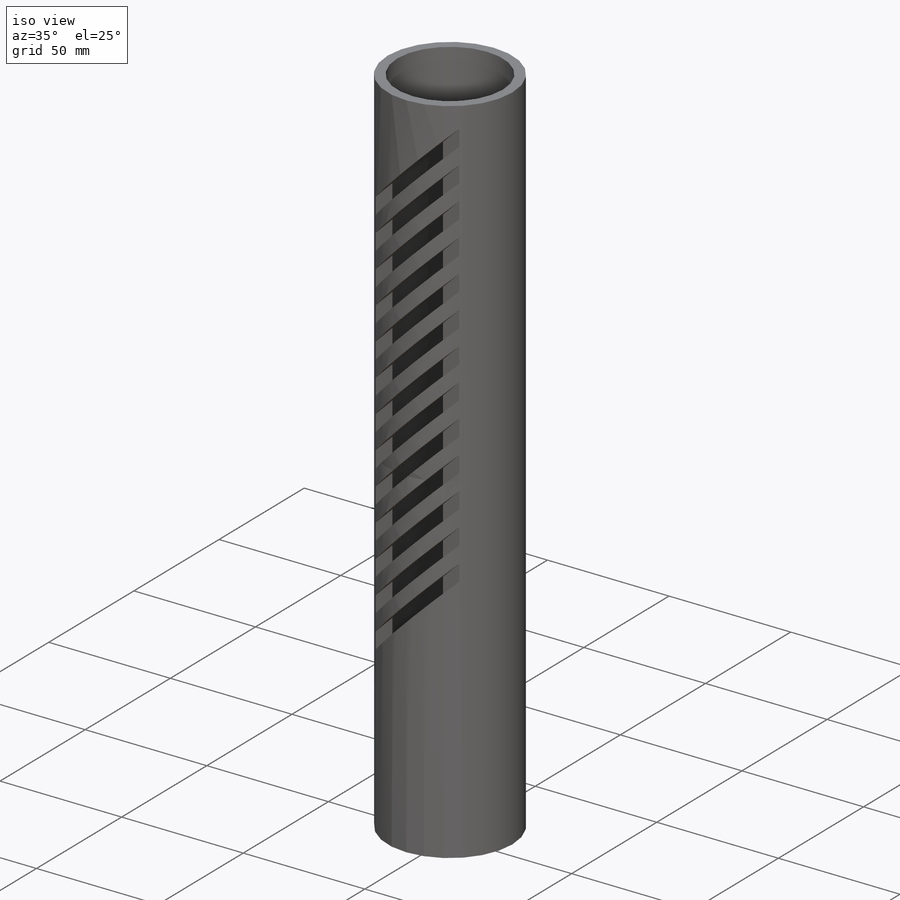
[diagram: iso view]
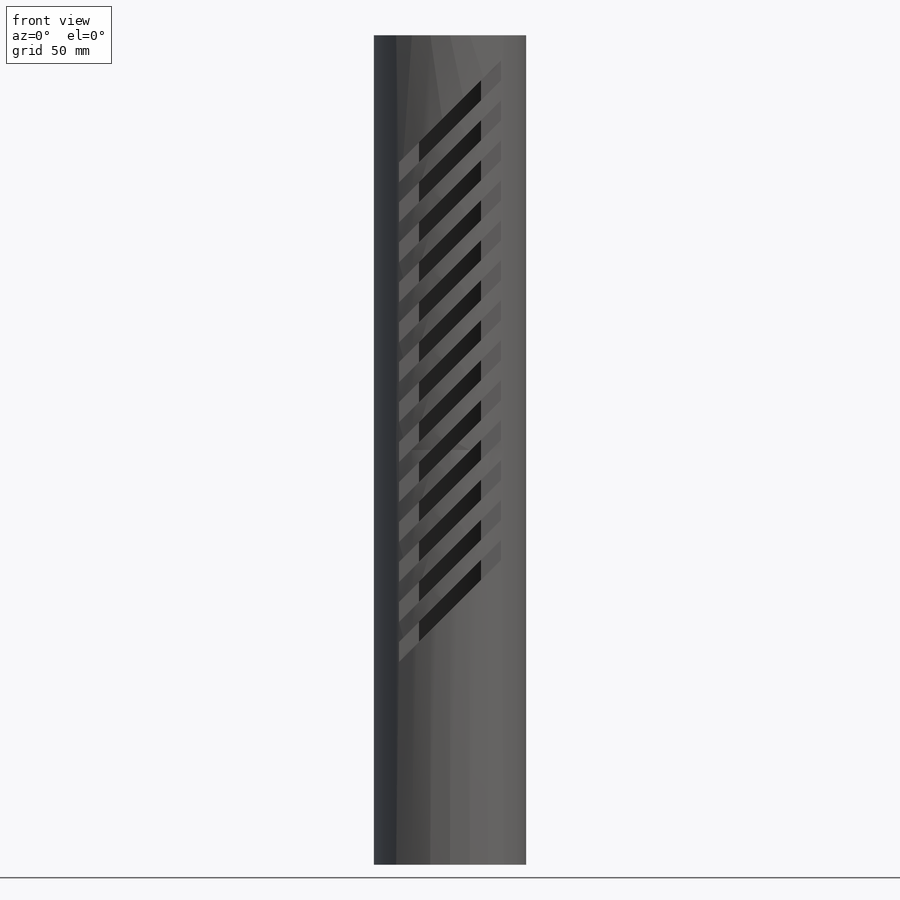
[diagram: front view]
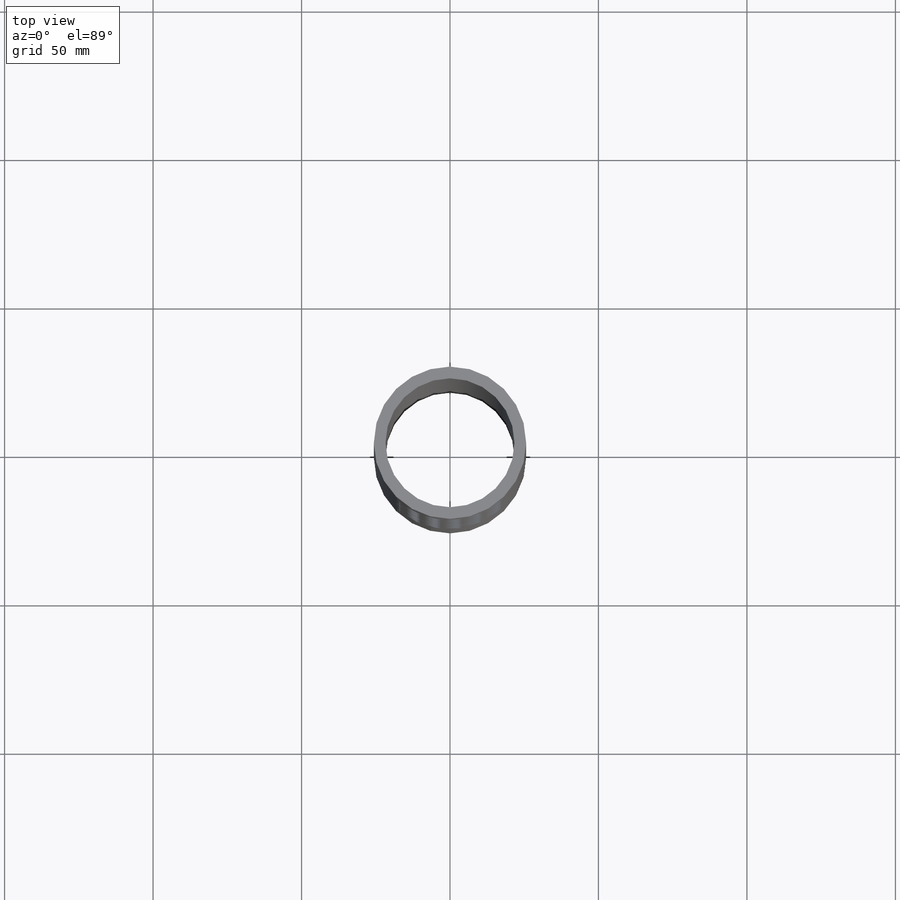
[diagram: top view]
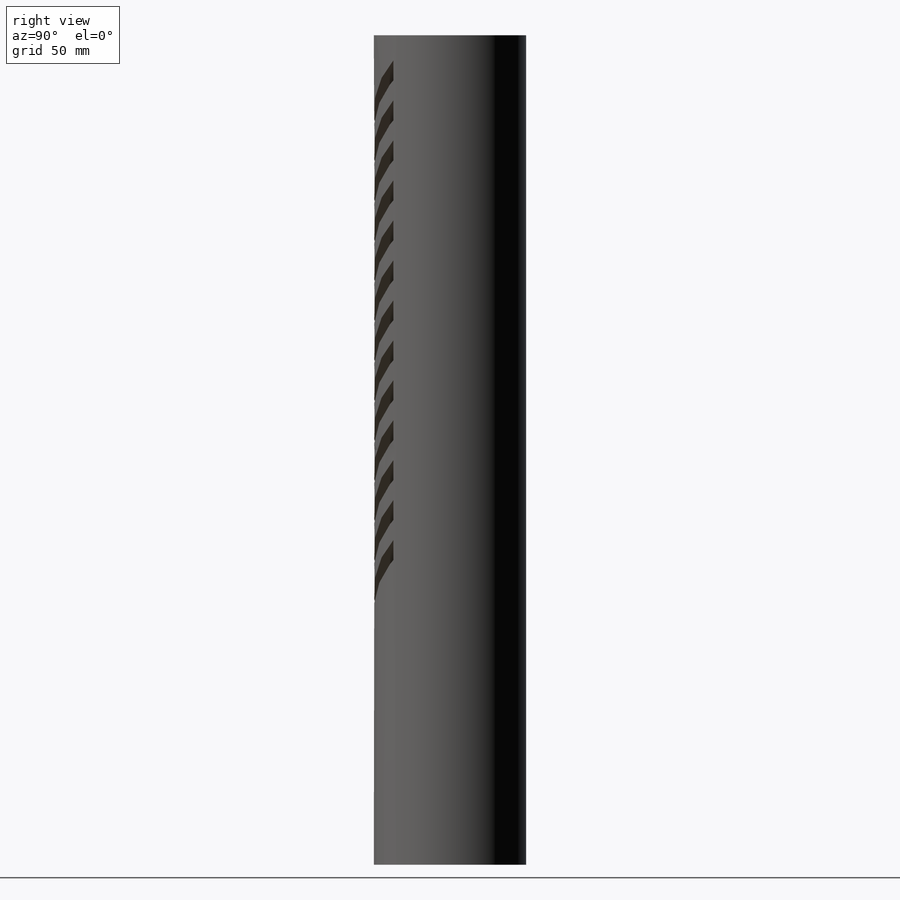
[diagram: right view]
SOLIDWORKS PART (.sldprt)
format: sldprt  version: not decoded by parser v0  size: 214,528 bytes
history: native  units: mm
features: sketch x4, cut_extrude x2, material x1, extrude x1, pattern_linear x1 (+12 scaffold rows collapsed)
feature tree (21):
  scaffold x12  (default folders/planes/origin — collapsed)
  material  "PBT General Purpose"
  sketch  "Sketch1"  dims[D1=51.308mm D2=43.434mm]
  extrude  "Boss-Extrude1"  Depth=279.4mm
  sketch  "Sketch2"  dims[c1.D1=~206.651725mm c2.D1=45.0deg c2.D2=4.7625mm c2.D3=254.0mm c2.D4=0.0mm c3.D1=~75.017049mm c4.D1=45.0deg c4.D3=~169.480092mm c5.D1=~115.256449mm c6.D1=45.0deg]
  cut_extrude  "Cut-Extrude1"  Depth=12.7mm
  pattern_linear  "LPattern1"  Count1=13 Count2=1 Spacing1=13.462mm Spacing2=50mm
  sketch  "Sketch3"  dims[c1.D1=12.7mm c2.D1=~84.097666deg]
  sketch  "Sketch5"  dims[D1=45.72mm]
  cut_extrude  "Cut-Extrude3"  Depth=5.08mm
decode coverage: 8 of 8 modeling features carry decoded parameters
note: ~ marks probable driven/reference dimensions
note: suppression state not decoded; provenance and decode notes live in map.json
